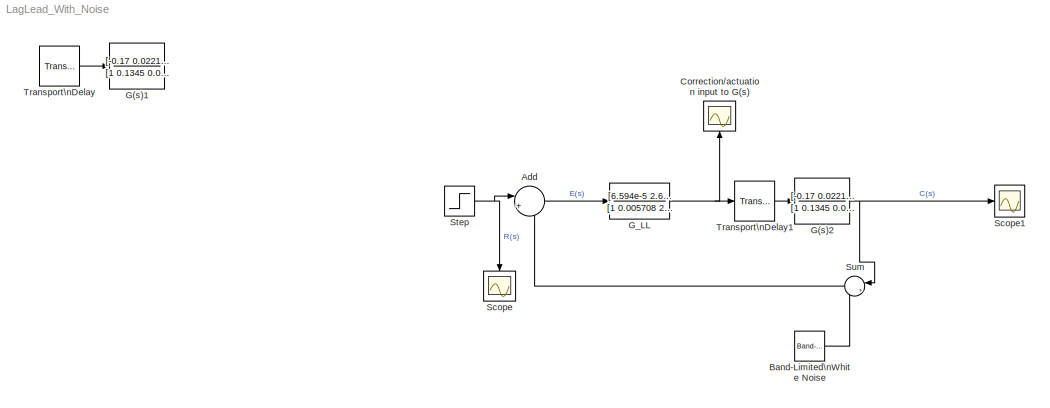
MODEL LagLead_With_Noise
KIND model
BLOCK [Sum] Add
  IconShape = round
  InputSameDT = off
  Inputs = |+-
  OutDataTypeStr = Inherit: Inherit via internal rule
  Ports = [2, 1]
  SID = 4
  SaturateOnIntegerOverflow = off
BLOCK [Reference] Band-Limited\nWhite Noise  REF=simulink/Sources/Band-Limited\nWhite Noise
  Cov = 0.1
  Ports = [0, 1]
  SID = 23
  SourceBlock = simulink/Sources/Band-Limited\nWhite Noise
  SourceProductBaseCode = SL
  SourceProductName = Simulink
  SourceType = Band-Limited White Noise.
  Ts = 1
  VectorParams1D = on
  seed = [23341]
BLOCK [Scope] Correction//actuation input to G(s)
  NumInputPorts = 1
  Ports = [1]
  SID = 18
  ScopeSpecificationString = Simulink.scopes.TimeScopeBlockCfg('CurrentConfiguration', extmgr.ConfigurationSet(extmgr.Configuration('Core','General UI',true),extmgr.Configuration('Core','Source UI',true),extmgr.Configuration('Sources','WiredSimulink',true,'DataLoggingVariableName','ScopeData2'),extmgr.Configuration('Visuals','Time Domain',true,'SerializedDisplays',{struct('MinYLimReal','-0.00032','MaxYLimReal','0.00033','YLab...<+1391ch>
BLOCK [TransferFcn] G(s)1
  Denominator = [1 0.1345 0.003587 1.376e-5 6e-9]
  Numerator = [-0.17 0.0221 0.00068]
  SID = 24
BLOCK [TransferFcn] G(s)2
  Denominator = [1 0.1345 0.003587 1.376e-5 6e-9]
  Numerator = [-0.17 0.0221 0.00068]
  SID = 26
BLOCK [TransferFcn] G_LL
  Denominator = [1 0.005708 2.683e-7]
  Numerator = [6.594e-5 2.65e-7 1.16e-10]
  SID = 16
BLOCK [Scope] Scope
  NumInputPorts = 1
  Ports = [1]
  SID = 5
  ScopeSpecificationString = Simulink.scopes.TimeScopeBlockCfg('CurrentConfiguration', extmgr.ConfigurationSet(extmgr.Configuration('Core','General UI',true),extmgr.Configuration('Core','Source UI',true),extmgr.Configuration('Sources','WiredSimulink',true),extmgr.Configuration('Visuals','Time Domain',true,'SerializedDisplays',{struct('MinYLimReal','-0.125','MaxYLimReal','1.125','YLabelReal','','MinYLimMag','0.00000','MaxYLimM...<+1312ch>
BLOCK [Scope] Scope1
  NumInputPorts = 1
  Ports = [1]
  SID = 6
  ScopeSpecificationString = Simulink.scopes.TimeScopeBlockCfg('CurrentConfiguration', extmgr.ConfigurationSet(extmgr.Configuration('Core','General UI',true),extmgr.Configuration('Core','Source UI',true),extmgr.Configuration('Sources','WiredSimulink',true,'DataLoggingVariableName','ScopeData1'),extmgr.Configuration('Visuals','Time Domain',true,'SerializedDisplays',{struct('MinYLimReal','-0.13596','MaxYLimReal','1.22347','YLab...<+1737ch>
BLOCK [Step] Step
  SID = 3
  SampleTime = 0
BLOCK [Sum] Sum
  IconShape = round
  InputSameDT = off
  Inputs = |++
  OutDataTypeStr = Inherit: Inherit via internal rule
  Ports = [2, 1]
  SID = 22
  SaturateOnIntegerOverflow = off
BLOCK [TransportDelay] Transport\nDelay
  DelayTime = 8.5
  Ports = [1, 1]
  SID = 25
BLOCK [TransportDelay] Transport\nDelay1
  DelayTime = 8.5
  Ports = [1, 1]
  SID = 27
LINE Add:1 -> G_LL:1
LINE Band-Limited\nWhite Noise:1 -> Sum:2
NET G(s)2:1 -> Scope1:1, Sum:1
NET G_LL:1 -> Correction//actuation input to G(s):1, Transport\nDelay1:1
NET Step:1 -> Add:1, Scope:1
LINE Sum:1 -> Add:2
LINE Transport\nDelay1:1 -> G(s)2:1
LINE Transport\nDelay:1 -> G(s)1:1
note: NET lines group one-source signal fan-out (src -> all destinations, sorted); 1:1 wires keep LINE
